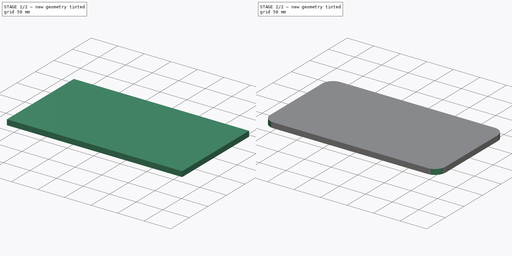
[diagram: build sequence overview — one tinted view per stage of 2, left to right]
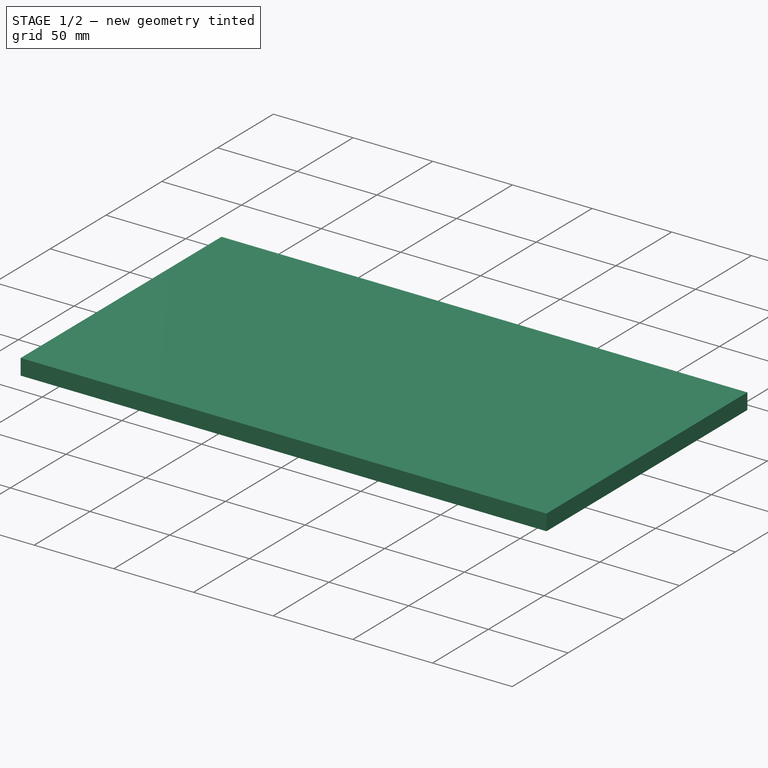
[diagram: stage 1 of 2 — iso view after this stage's code; geometry added in this stage tinted green]
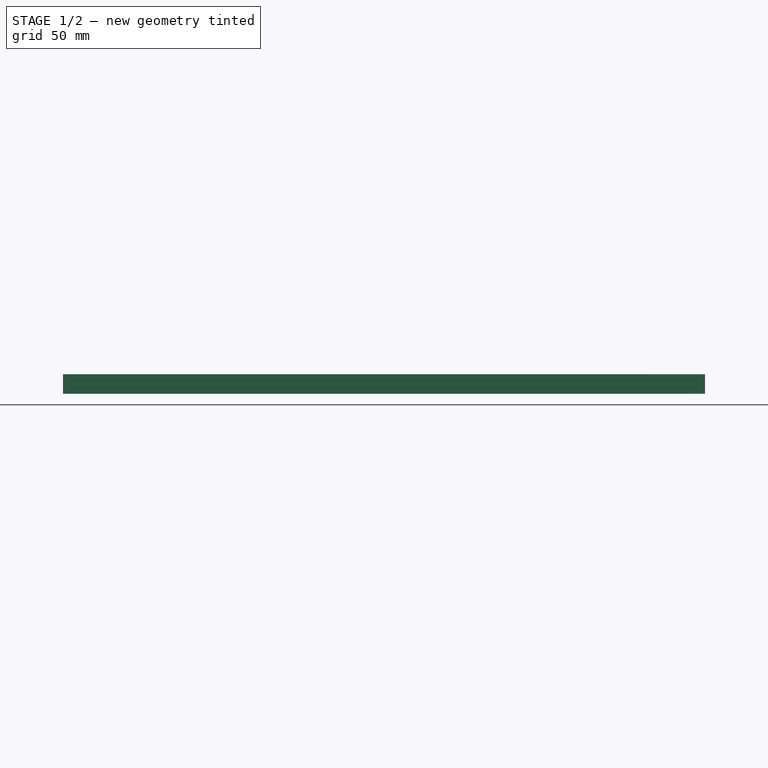
[diagram: stage 1 of 2 — front view after this stage's code; geometry added in this stage tinted green]
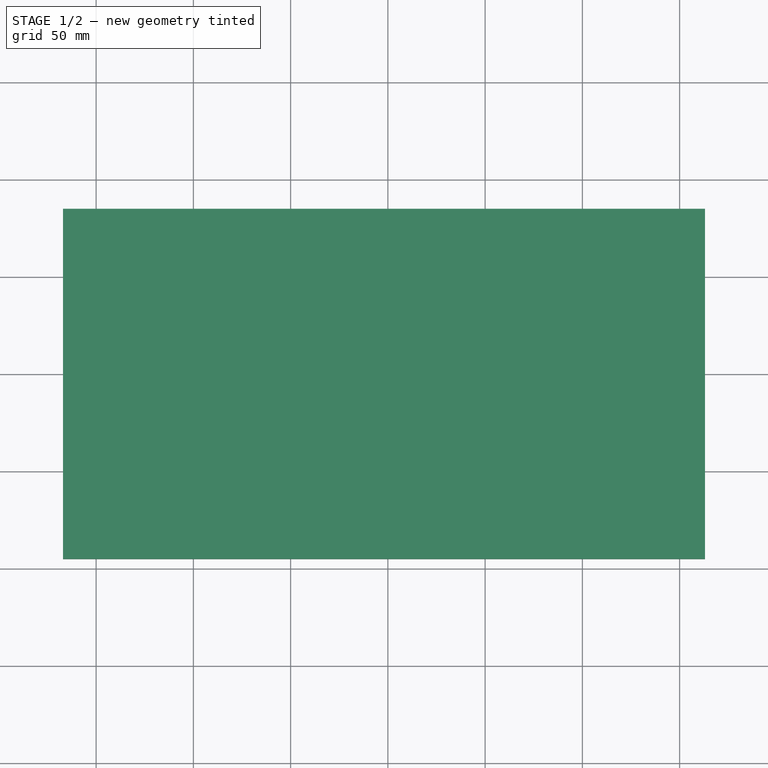
[diagram: stage 1 of 2 — top view after this stage's code; geometry added in this stage tinted green]
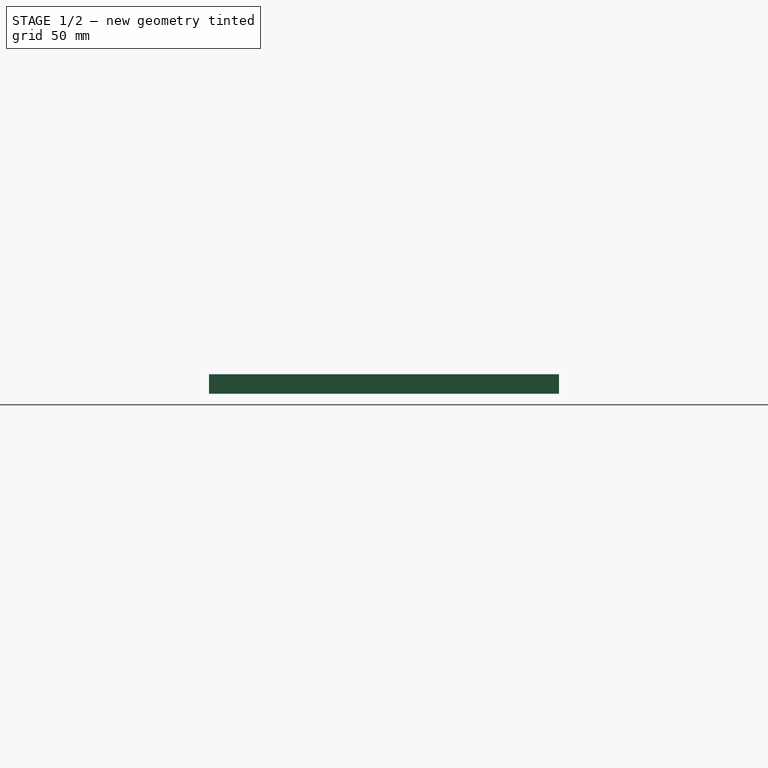
[diagram: stage 1 of 2 — right view after this stage's code; geometry added in this stage tinted green]
FCSTD DOCUMENT  (FreeCAD 0.19R24276 (Git))
Label: Opora_Nema23_Bottom_part_A2
License: All rights reserved
LicenseURL: http://en.wikipedia.org/wiki/All_rights_reserved
objects: Sketcher::SketchObject×1, PartDesign::Pad×1, PartDesign::Fillet×1, PartDesign::Body×1
note: 6 computed .brp shape members not serialized (recipe doc carries the construction recipe); baked Part::Feature solids carry a one-line shape summary decoded from their .brp

FEATURE [Sketcher::SketchObject] Sketch
  FullyConstrained = false
  MapMode = 5
  Support = -> [XY_Plane]
  sketch-geometry (16):
    g0: LineSegment StartX=-63 StartY=37.6189 StartZ=0 EndX=-33 EndY=37.6189 EndZ=0
    g1: LineSegment StartX=-33 StartY=37.6189 StartZ=0 EndX=-33 EndY=-138.588 EndZ=0
    g2: LineSegment StartX=-33 StartY=-138.588 StartZ=0 EndX=-63 EndY=-138.588 EndZ=0
    g3: LineSegment StartX=-63 StartY=-138.588 StartZ=0 EndX=-63 EndY=37.6189 EndZ=0
    g4: LineSegment StartX=-67 StartY=35 StartZ=0 EndX=263 EndY=35 EndZ=0
    g5: LineSegment StartX=263 StartY=35 StartZ=0 EndX=263 EndY=-145 EndZ=0
    g6: LineSegment StartX=263 StartY=-145 StartZ=0 EndX=-67 EndY=-145 EndZ=0
    g7: LineSegment StartX=-67 StartY=-145 StartZ=0 EndX=-67 EndY=35 EndZ=0
    g8: LineSegment StartX=250.403 StartY=54.4876 StartZ=0 EndX=220.403 EndY=54.4876 EndZ=0
    g9: LineSegment StartX=220.403 StartY=54.4876 StartZ=0 EndX=220.403 EndY=-180.113 EndZ=0
    g10: LineSegment StartX=220.403 StartY=-180.113 StartZ=0 EndX=250.403 EndY=-180.113 EndZ=0
    g11: LineSegment StartX=250.403 StartY=-180.113 StartZ=0 EndX=250.403 EndY=54.4876 EndZ=0
    g12: LineSegment StartX=0 StartY=57.7393 StartZ=0 EndX=150 EndY=57.7393 EndZ=0
    g13: LineSegment StartX=150 StartY=57.7393 StartZ=0 EndX=150 EndY=-259.427 EndZ=0
    g14: LineSegment StartX=150 StartY=-259.427 StartZ=0 EndX=0 EndY=-259.427 EndZ=0
    g15: LineSegment StartX=0 StartY=-259.427 StartZ=0 EndX=0 EndY=57.7393 EndZ=0
  constraints (35):
    c: Coincident(g1,g2)
    c: Coincident(g2,g3)
    c: Coincident(g3,g0)
    c: Horizontal(g0)
    c: Horizontal(g2)
    c: Vertical(g1)
    c: Vertical(g3)
    c: DistanceX(g0,g0) = 30
    c: Coincident(g4,g5)
    c: Coincident(g5,g6)
    c: Coincident(g6,g7)
    c: Coincident(g7,g4)
    c: Horizontal(g4)
    c: Horizontal(g6)
    c: Vertical(g5)
    c: Vertical(g7)
    c: DistanceY(g5,g5) = 180
    c: Coincident(g8,g9)
    c: Coincident(g9,g10)
    c: Coincident(g10,g11)
    c: Coincident(g11,g8)
    c: Horizontal(g8)
    c: Horizontal(g10)
    c: Vertical(g9)
    c: Vertical(g11)
    c: DistanceX(g10,g10) = 30
    c: Coincident(g13,g14)
    c: Coincident(g14,g15)
    c: Horizontal(g12)
    c: Horizontal(g14)
    c: Vertical(g13)
    c: Vertical(g15)
    c: DistanceX(g14,g14) = 150
    c: DistanceX(g6,g6) = 330
    c: DistanceX(g4,g0) = 4
FEATURE [PartDesign::Pad] Pad
  Direction = (1,1,1)
  Length = 10
  Length2 = 100
  Profile = -> Sketch
  Type = 0
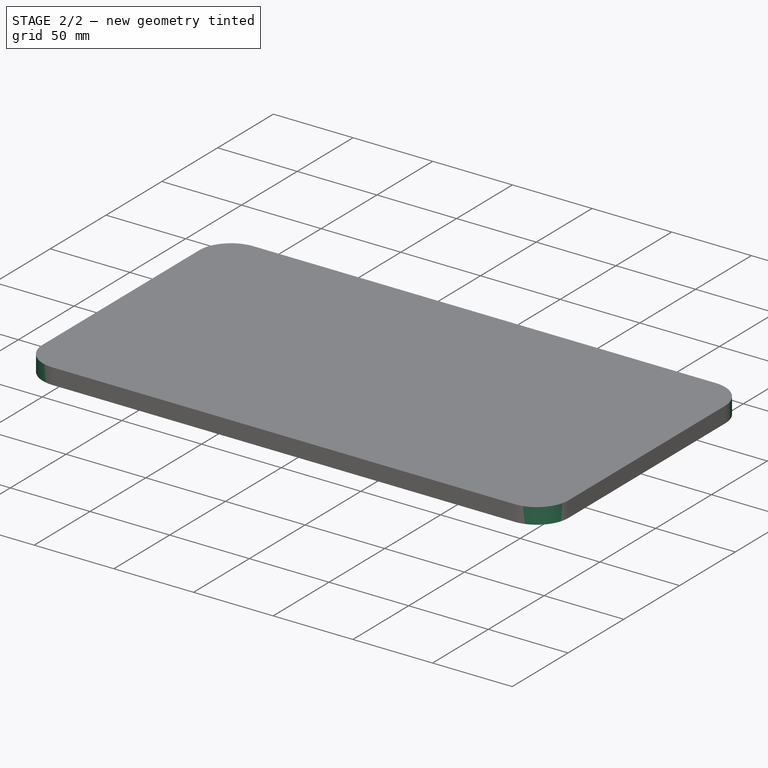
[diagram: stage 2 of 2 — iso view after this stage's code; geometry added in this stage tinted green]
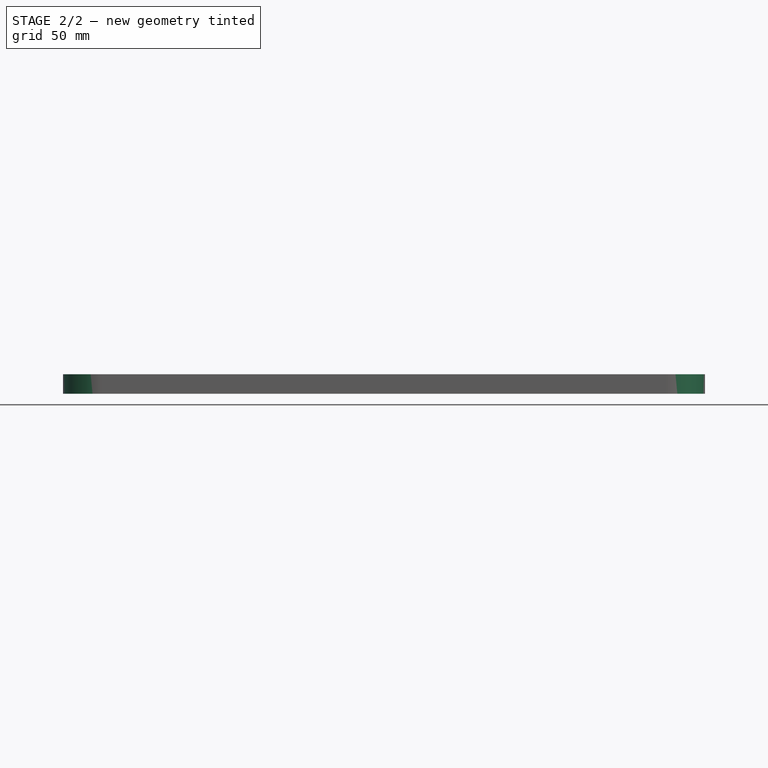
[diagram: stage 2 of 2 — front view after this stage's code; geometry added in this stage tinted green]
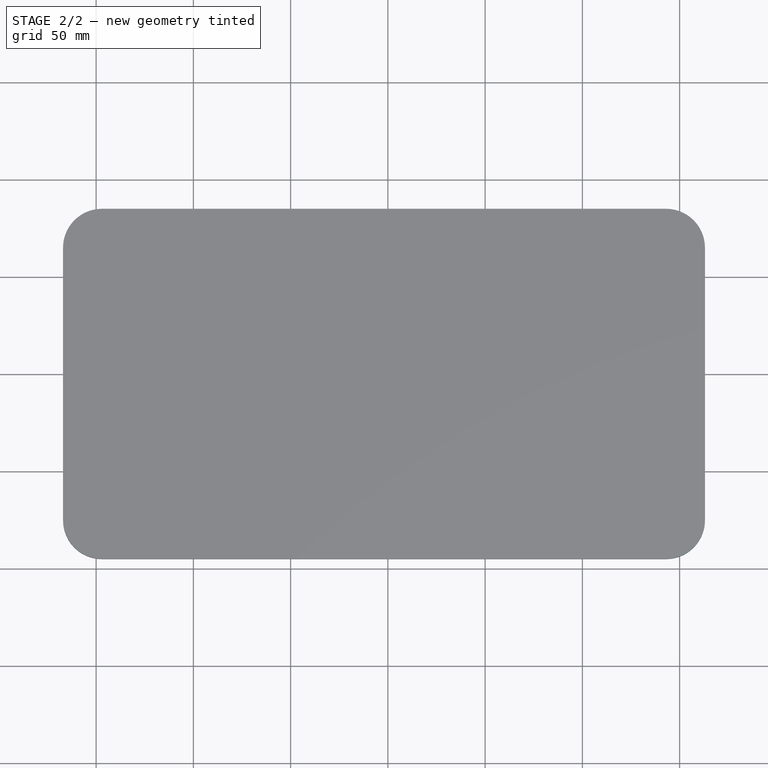
[diagram: stage 2 of 2 — top view after this stage's code; geometry added in this stage tinted green]
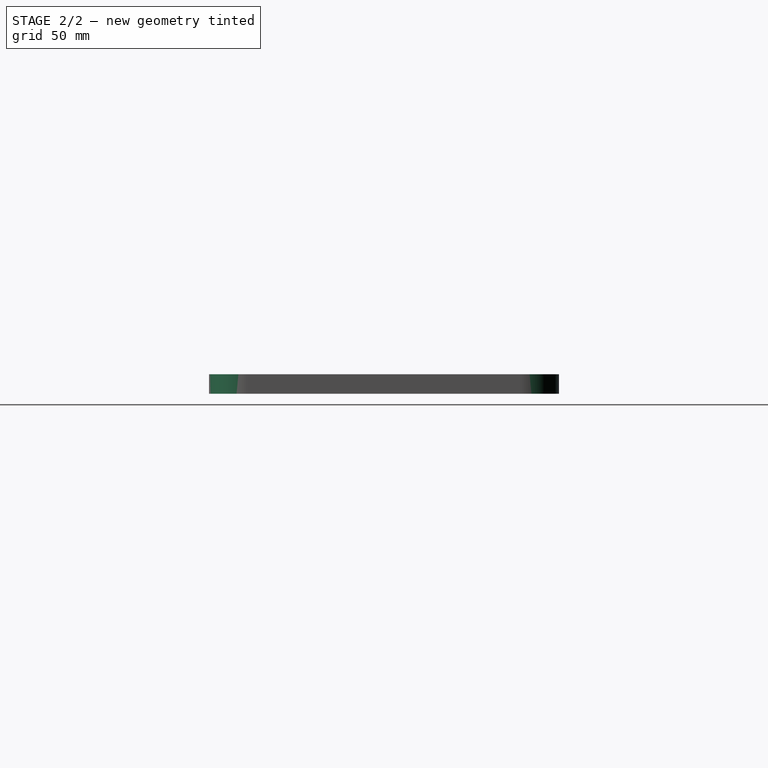
[diagram: stage 2 of 2 — right view after this stage's code; geometry added in this stage tinted green]
FEATURE [PartDesign::Fillet] Fillet
  Base = -> Pad [Edge8,Edge5,Edge2,Edge1]
  BaseFeature = -> Pad
  Radius = 20
  SupportTransform = false
FEATURE [PartDesign::Body] Body
  Group = -> [Sketch,Pad,Fillet]
  Origin = -> Origin
  Tip = -> Fillet
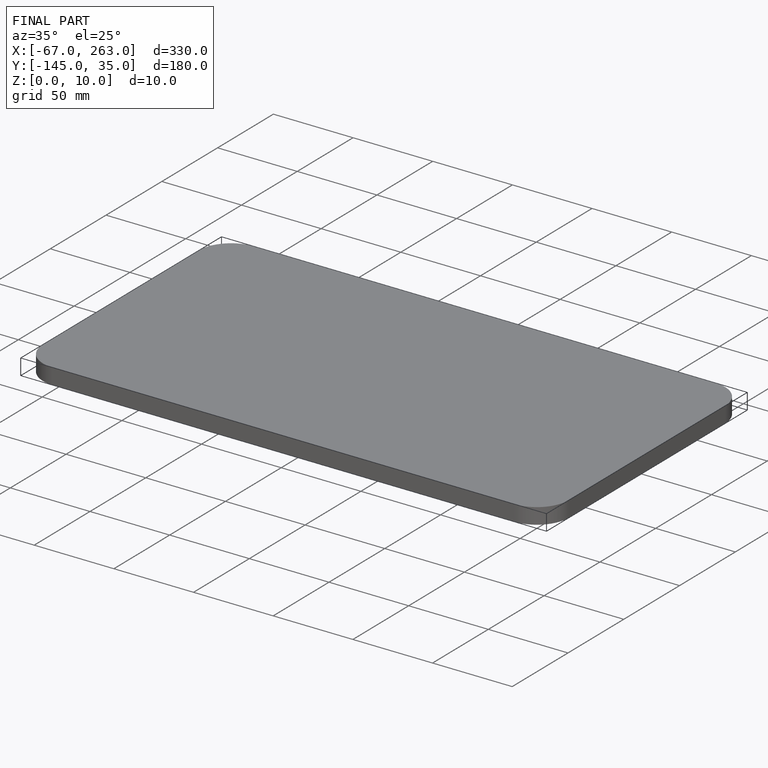
[diagram: finished part — iso view with bounding-box wireframe]
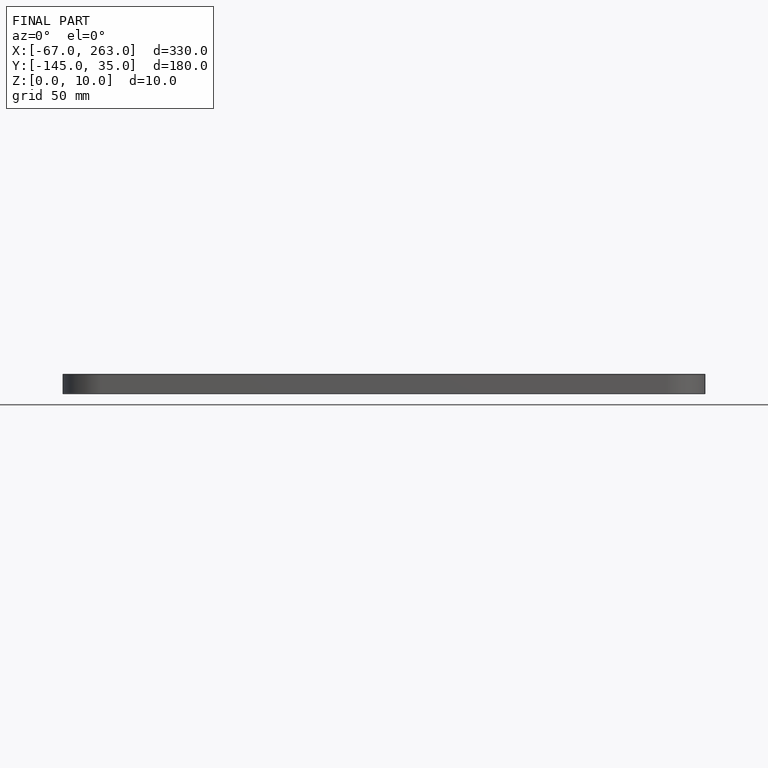
[diagram: finished part — front view with bounding-box wireframe]
